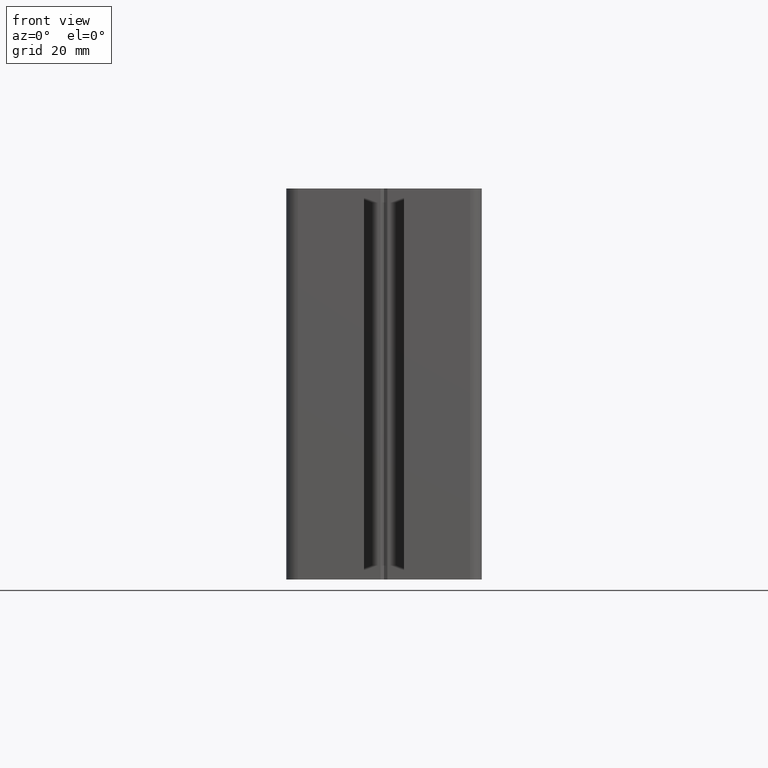
[diagram: clean part render]
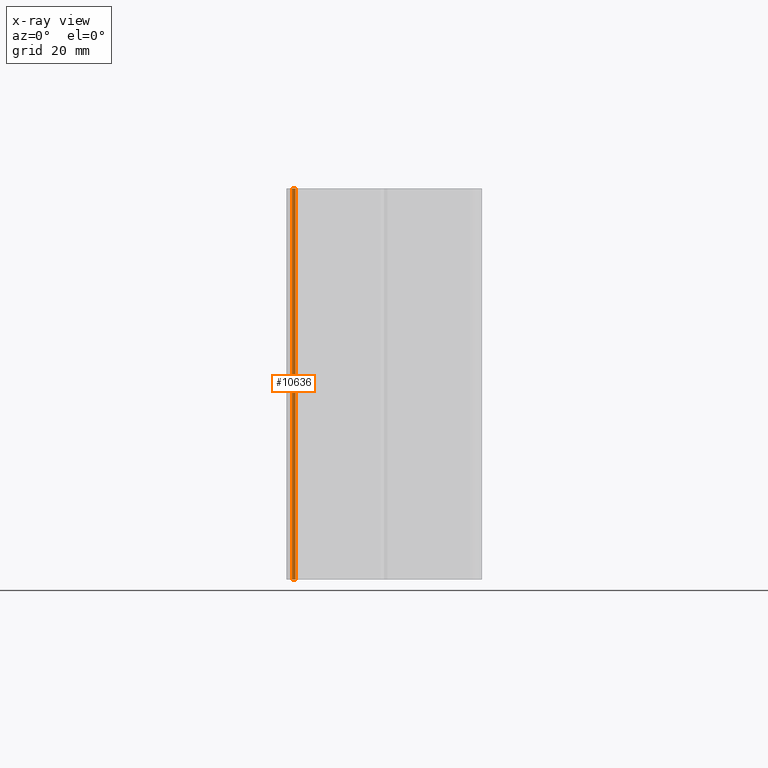
[diagram: x-ray — body ghosted, one internal face saturated and labeled with its STEP entity id]
A machine part, front view, then the same camera in x-ray: the body is ghosted and one INTERNAL B-rep face — a face not visible from any outside direction — is saturated and labeled: STEP entity #10636.
In plain terms, the highlighted planar face has unit normal (0, -1, 0).
Its self-contained STEP definition (entity closure, byte-faithful):
#2878 = PLANE ( 'NONE',  #2908 ) ;
#2887 = DIRECTION ( 'NONE',  ( -0.0000000000000000000, -0.0000000000000000000, -1.000000000000000000 ) ) ;
#2888 = VECTOR ( 'NONE', #2887, 1000.000000000000000 ) ;
#2889 = CARTESIAN_POINT ( 'NONE',  ( -22.62347538297979100, 69.00000000000000000, 100.0000000000000000 ) ) ;
#2893 = FACE_OUTER_BOUND ( 'NONE', #10648, .T. ) ;
#2894 = CARTESIAN_POINT ( 'NONE',  ( -23.50000230031664800, 68.99999715487115300, 100.0000000000000000 ) ) ;
#2901 = LINE ( 'NONE', #2889, #2888 ) ;
#2908 = AXIS2_PLACEMENT_3D ( 'NONE', #2894, #2945, #2944 ) ;
#2944 = DIRECTION ( 'NONE',  ( 0.9999999999947319900, 3.245911561236582300E-006, 0.0000000000000000000 ) ) ;
#2945 = DIRECTION ( 'NONE',  ( 3.245911561236582700E-006, -0.9999999999947321000, 0.0000000000000000000 ) ) ;
#2978 = DIRECTION ( 'NONE',  ( -0.0000000000000000000, -0.0000000000000000000, -1.000000000000000000 ) ) ;
#2979 = VECTOR ( 'NONE', #2978, 1000.000000000000000 ) ;
#2980 = CARTESIAN_POINT ( 'NONE',  ( -23.50000230031664800, 68.99999715487115300, 100.0000000000000000 ) ) ;
#2984 = LINE ( 'NONE', #2980, #2979 ) ;
#5873 = VERTEX_POINT ( 'NONE', #13369 ) ;
#5905 = VERTEX_POINT ( 'NONE', #13380 ) ;
#5923 = EDGE_CURVE ( 'NONE', #5905, #5873, #13131, .T. ) ;
#8448 = VERTEX_POINT ( 'NONE', #16629 ) ;
#8491 = EDGE_CURVE ( 'NONE', #8448, #8495, #16759, .T. ) ;
#8495 = VERTEX_POINT ( 'NONE', #16765 ) ;
#10632 = EDGE_CURVE ( 'NONE', #5905, #8448, #2901, .T. ) ;
#10635 = ORIENTED_EDGE ( 'NONE', *, *, #10632, .F. ) ;
#10636 = ADVANCED_FACE ( 'NONE', ( #2893 ), #2878, .T. ) ;
#10637 = ORIENTED_EDGE ( 'NONE', *, *, #5923, .T. ) ;
#10638 = ORIENTED_EDGE ( 'NONE', *, *, #8491, .F. ) ;
#10648 = EDGE_LOOP ( 'NONE', ( #10638, #10635, #10637, #10684 ) ) ;
#10682 = EDGE_CURVE ( 'NONE', #5873, #8495, #2984, .T. ) ;
#10684 = ORIENTED_EDGE ( 'NONE', *, *, #10682, .T. ) ;
#13131 = LINE ( 'NONE', #13133, #13144 ) ;
#13133 = CARTESIAN_POINT ( 'NONE',  ( -23.50000230031664800, 68.99999715487115300, 100.0000000000000000 ) ) ;
#13138 = DIRECTION ( 'NONE',  ( -0.9999999999947319900, -3.245911561236581800E-006, -0.0000000000000000000 ) ) ;
#13144 = VECTOR ( 'NONE', #13138, 1000.000000000000100 ) ;
#13369 = CARTESIAN_POINT ( 'NONE',  ( -23.50000230031664800, 68.99999715487115300, 100.0000000000000000 ) ) ;
#13380 = CARTESIAN_POINT ( 'NONE',  ( -22.62347538297979100, 69.00000000000000000, 100.0000000000000000 ) ) ;
#16629 = CARTESIAN_POINT ( 'NONE',  ( -22.62347538297979100, 69.00000000000000000, 0.0000000000000000000 ) ) ;
#16756 = DIRECTION ( 'NONE',  ( -0.9999999999947319900, -3.245911561236581800E-006, -0.0000000000000000000 ) ) ;
#16757 = VECTOR ( 'NONE', #16756, 1000.000000000000100 ) ;
#16758 = CARTESIAN_POINT ( 'NONE',  ( -23.50000230031664800, 68.99999715487115300, 0.0000000000000000000 ) ) ;
#16759 = LINE ( 'NONE', #16758, #16757 ) ;
#16765 = CARTESIAN_POINT ( 'NONE',  ( -23.50000230031664800, 68.99999715487115300, 0.0000000000000000000 ) ) ;